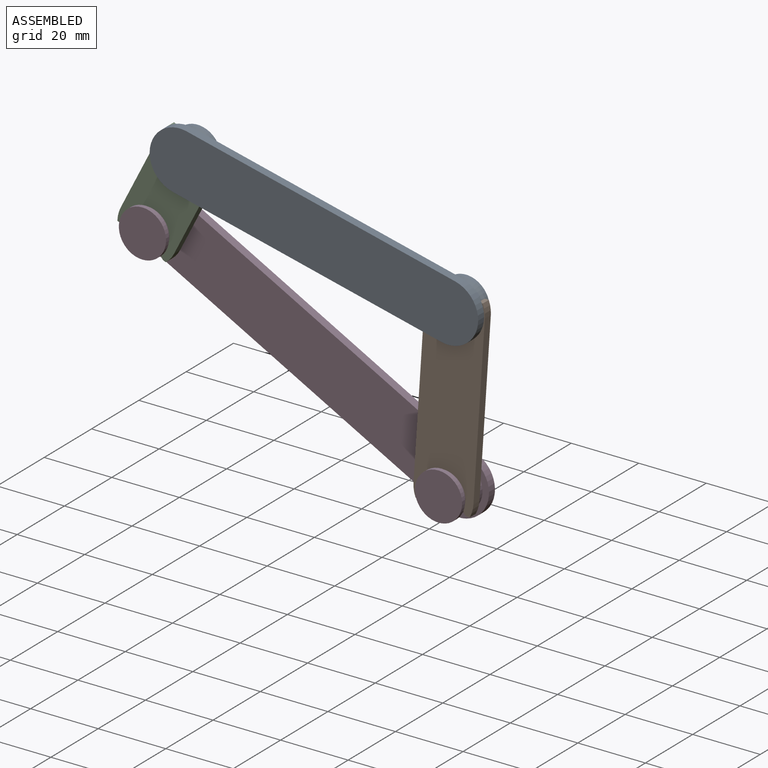
[diagram: assembled view]
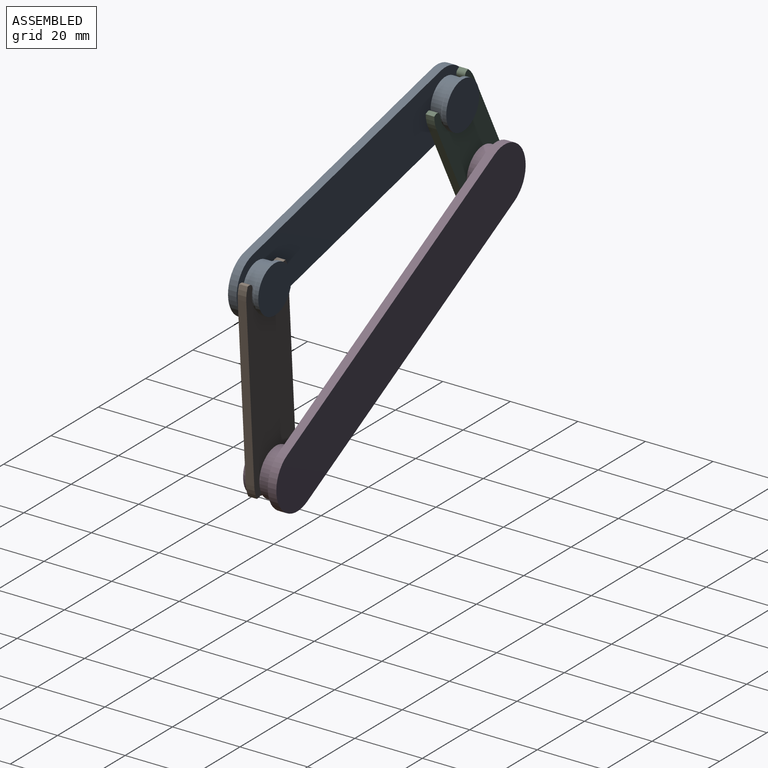
[diagram: assembled view, second angle]
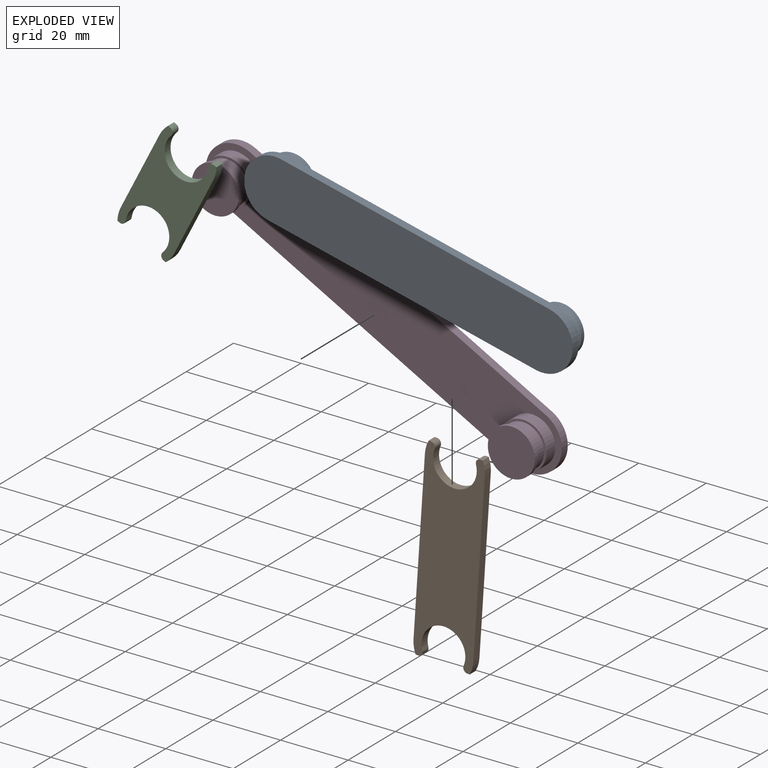
[diagram: exploded view]
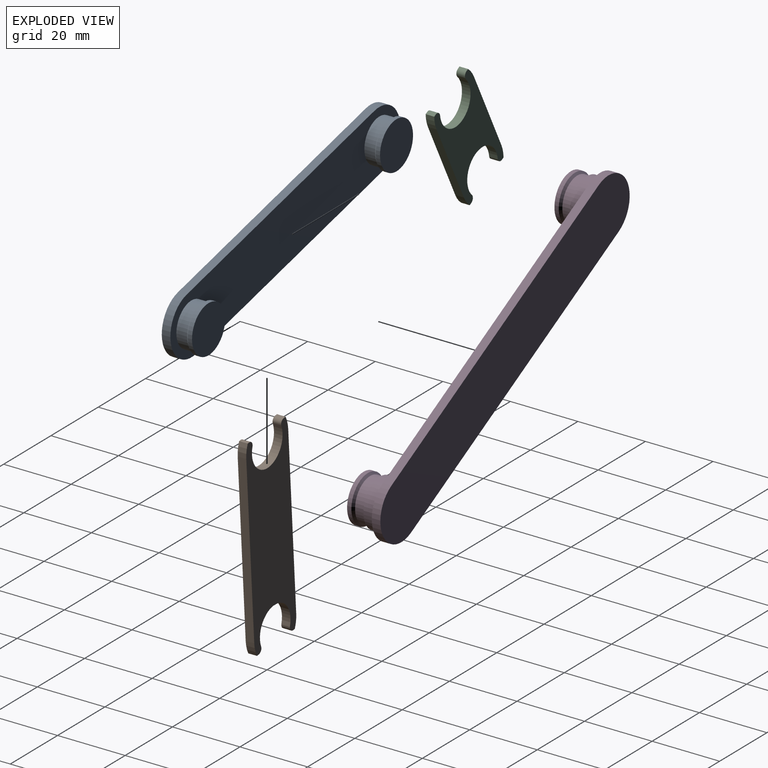
[diagram: exploded view, second angle]
ASSEMBLY  parts=4 mates=4
PART A: 14 faces, bbox 99.5x7.6x17.8 mm
  f0: plane 81.69x2.54mm, normal (0,0,1), area 207.5mm2, adj f1,f3,f4,f5
  f1: cylinder r=8.89mm len=17.78mm, axis (0,1,0), area 70.9mm2, adj f0,f2,f4,f5
  f2: plane 81.69x2.54mm, normal (0,0,-1), area 207.5mm2, adj f1,f3,f4,f5
  f3: cylinder r=8.89mm len=17.78mm, axis (0,1,0), area 70.9mm2, adj f0,f2,f4,f5
  f4: plane 99.47x17.78mm, normal (0,-1,0), area 1700.8mm2, adj f0,f1,f2,f3
  f5: plane 99.47x17.78mm, normal (0,1,0), area 1447.5mm2, adj f0,f1,f2,f3,f6,f7
  f6: cylinder r=6.35mm len=12.7mm, axis (0,-1,0), area 126.7mm2, adj f5,f12
  f7: cylinder r=6.35mm len=12.7mm, axis (0,-1,0), area 126.7mm2, adj f5,f13
  f8: cylinder r=6.99mm len=13.97mm, axis (0,-1,0), area 55.7mm2, adj f9,f13
  f9: plane 13.97x13.97mm, normal (0,1,0), area 153.3mm2, adj f8
  f10: cylinder r=6.99mm len=13.97mm, axis (0,-1,0), area 55.7mm2, adj f11,f12
  f11: plane 13.97x13.97mm, normal (0,1,0), area 153.3mm2, adj f10
  f12: cone r=6.35mm half-angle=45deg, axis (0,1,0), area 37.6mm2, adj f6,f10
  f13: cone r=6.35mm half-angle=45deg, axis (0,1,0), area 37.6mm2, adj f7,f8
PART B: 18 faces, bbox 37.2x2.5x60.1 mm
  f0: cylinder r=6.48mm len=12.94mm, axis (0,1,0), area 62.7mm2, adj f12,f13,f14,f17
  f1: plane 2.54x0.66mm, normal (0.38,0,0.92), area 1.8mm2, adj f2,f12,f13,f14
  f2: cylinder r=8.89mm len=3.19mm, axis (0,1,0), area 10mm2, adj f1,f3,f12,f13
  f3: plane 46.93x19.44mm, normal (-0.92,0,0.38), area 129mm2, adj f2,f4,f12,f13
  f4: cylinder r=8.89mm len=3.85mm, axis (0,1,0), area 10mm2, adj f3,f5,f12,f13
  f5: plane 2.54x0.66mm, normal (-0.38,0,-0.92), area 1.8mm2, adj f4,f12,f13,f15
  f6: cylinder r=6.48mm len=12.94mm, axis (0,1,0), area 62.7mm2, adj f12,f13,f15,f16
  f7: plane 2.54x0.66mm, normal (-0.38,0,-0.92), area 1.8mm2, adj f8,f12,f13,f16
  f8: cylinder r=8.89mm len=3.19mm, axis (0,1,0), area 10mm2, adj f7,f9,f12,f13
  f9: plane 46.93x19.44mm, normal (0.92,0,-0.38), area 129mm2, adj f8,f10,f12,f13
  f10: cylinder r=8.89mm len=3.85mm, axis (0,1,0), area 10mm2, adj f9,f11,f12,f13
  f11: plane 2.54x0.66mm, normal (0.38,0,0.92), area 1.8mm2, adj f10,f12,f13,f17
  f12: plane 60.12x37.22mm, normal (0,-1,0), area 806.4mm2, adj f0,f1,f2,f3,f4,f5,f6,f7
  f13: plane 60.12x37.22mm, normal (0,1,0), area 806.4mm2, adj f0,f1,f2,f3,f4,f5,f6,f7
  f14: cylinder r=1.27mm len=2.54mm, axis (0,1,0), area 6.1mm2, adj f0,f1,f12,f13
  f15: cylinder r=1.27mm len=2.54mm, axis (0,1,0), area 6.1mm2, adj f5,f6,f12,f13
  f16: cylinder r=1.27mm len=2.54mm, axis (0,1,0), area 6.1mm2, adj f6,f7,f12,f13
  f17: cylinder r=1.27mm len=2.54mm, axis (0,1,0), area 6.1mm2, adj f0,f11,f12,f13
PART C: 18 faces, bbox 33x2.5x17.8 mm
  f0: plane 25.4x2.54mm, normal (0,0,1), area 64.5mm2, adj f1,f11,f12,f13
  f1: cylinder r=8.89mm len=3.81mm, axis (0,1,0), area 10mm2, adj f0,f2,f12,f13
  f2: plane 2.54x0.71mm, normal (-1,0,0), area 1.8mm2, adj f1,f12,f13,f14
  f3: cylinder r=6.48mm len=12.95mm, axis (0,1,0), area 62.7mm2, adj f12,f13,f14,f15
  f4: plane 2.54x0.71mm, normal (-1,0,0), area 1.8mm2, adj f5,f12,f13,f15
  f5: cylinder r=8.89mm len=3.81mm, axis (0,1,0), area 10mm2, adj f4,f6,f12,f13
  f6: plane 25.4x2.54mm, normal (0,0,-1), area 64.5mm2, adj f5,f7,f12,f13
  f7: cylinder r=8.89mm len=3.81mm, axis (0,1,0), area 10mm2, adj f6,f8,f12,f13
  f8: plane 2.54x0.71mm, normal (1,0,0), area 1.8mm2, adj f7,f12,f13,f16
  f9: cylinder r=6.48mm len=12.95mm, axis (0,1,0), area 62.7mm2, adj f12,f13,f16,f17
  f10: plane 2.54x0.71mm, normal (1,0,0), area 1.8mm2, adj f11,f12,f13,f17
  f11: cylinder r=8.89mm len=3.81mm, axis (0,1,0), area 10mm2, adj f0,f10,f12,f13
  f12: plane 33.02x17.78mm, normal (0,-1,0), area 354.8mm2, adj f0,f1,f2,f3,f4,f5,f6,f7
  f13: plane 33.02x17.78mm, normal (0,1,0), area 354.8mm2, adj f0,f1,f2,f3,f4,f5,f6,f7
  f14: cylinder r=1.27mm len=2.54mm, axis (0,1,0), area 6.1mm2, adj f2,f3,f12,f13
  f15: cylinder r=1.27mm len=2.54mm, axis (0,1,0), area 6.1mm2, adj f3,f4,f12,f13
  f16: cylinder r=1.27mm len=2.54mm, axis (0,1,0), area 6.1mm2, adj f8,f9,f12,f13
  f17: cylinder r=1.27mm len=2.54mm, axis (0,1,0), area 6.1mm2, adj f9,f10,f12,f13
PART D: 18 faces, bbox 105.4x11.2x64.7 mm
  f0: plane 87.65x46.93mm, normal (-0.47,0,-0.88), area 252.5mm2, adj f1,f3,f4,f5
  f1: cylinder r=8.89mm len=16.73mm, axis (0,-1,0), area 70.9mm2, adj f0,f2,f4,f5
  f2: plane 87.65x46.93mm, normal (0.47,0,0.88), area 252.5mm2, adj f1,f3,f4,f5
  f3: cylinder r=8.89mm len=16.73mm, axis (0,-1,0), area 70.9mm2, adj f0,f2,f4,f5
  f4: plane 105.43x64.71mm, normal (0,1,0), area 2016.1mm2, adj f0,f1,f2,f3
  f5: plane 105.43x64.71mm, normal (0,-1,0), area 1709.6mm2, adj f0,f1,f2,f3,f6,f11
  f6: cylinder r=6.99mm len=13.97mm, axis (0,1,0), area 167.2mm2, adj f5,f7
  f7: plane 13.97x13.97mm, normal (0,-1,0), area 26.6mm2, adj f6,f10
  f8: plane 13.97x13.97mm, normal (0,-1,0), area 153.3mm2, adj f9
  f9: cylinder r=6.99mm len=13.97mm, axis (0,1,0), area 55.7mm2, adj f8,f17
  f10: cylinder r=6.35mm len=12.7mm, axis (0,1,0), area 116.5mm2, adj f7,f17
  f11: cylinder r=6.99mm len=13.97mm, axis (0,1,0), area 167.2mm2, adj f5,f12
  f12: plane 13.97x13.97mm, normal (0,-1,0), area 26.6mm2, adj f11,f15
  f13: plane 13.97x13.97mm, normal (0,-1,0), area 153.3mm2, adj f14
  f14: cylinder r=6.99mm len=13.97mm, axis (0,1,0), area 55.7mm2, adj f13,f16
  f15: cylinder r=6.35mm len=12.7mm, axis (0,1,0), area 116.5mm2, adj f12,f16
  f16: cone r=6.99mm half-angle=45deg, axis (0,-1,0), area 37.6mm2, adj f14,f15
  f17: cone r=6.99mm half-angle=45deg, axis (0,-1,0), area 37.6mm2, adj f9,f10
PLACE A rot(axis=(0,1,0),13.4deg) t=(-25.01,-6.86,21.25)mm
PLACE B rot(axis=(0,-1,0),18.7deg) t=(2.68,-4,-16.28)mm
PLACE C rot(axis=(0,-1,0),63deg) t=(21.7,-4,58.43)mm
PLACE D at identity fixed
MATE revolute B.f6 <-> D.f15  axis (0,1,0) through (50.8,-5.27,0)mm
MATE revolute C.f1 <-> D.f3  axis (0,1,0) through (-36.85,-5.27,46.93)mm
MATE revolute A.f3 <-> B.f0  axis (0,-1,0) through (54.18,-5.27,50.69)mm
MATE revolute C.f7 <-> A.f1  axis (0,1,0) through (-25.31,-5.27,69.56)mm
